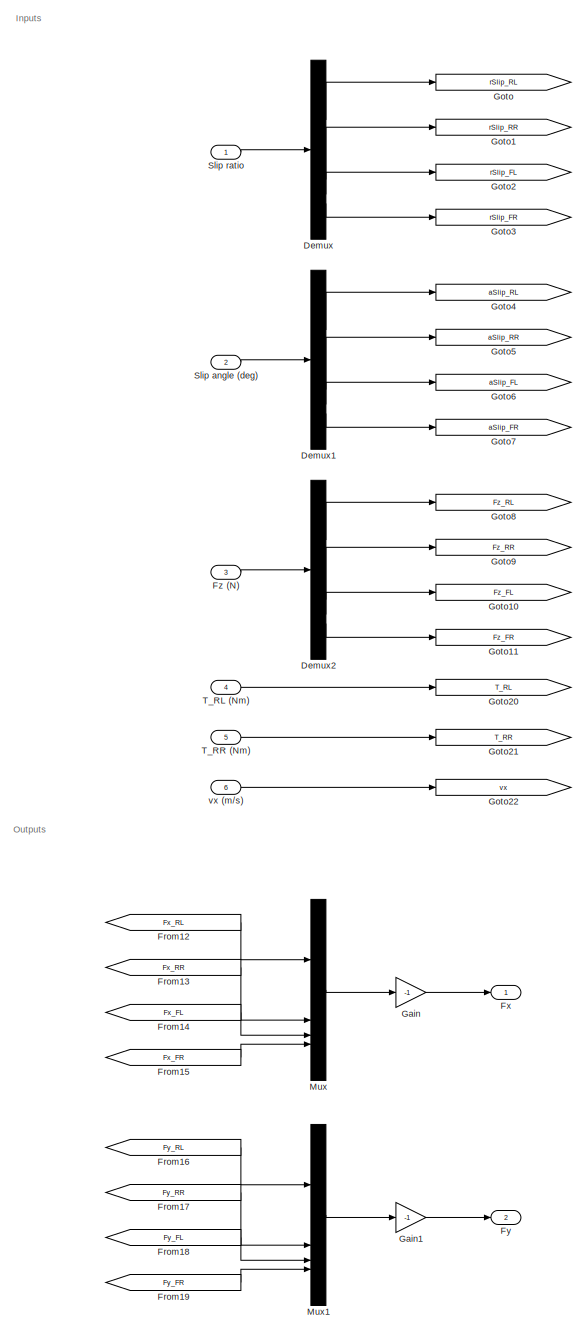
[diagram: root canvas - part 1/3, left side, full height]
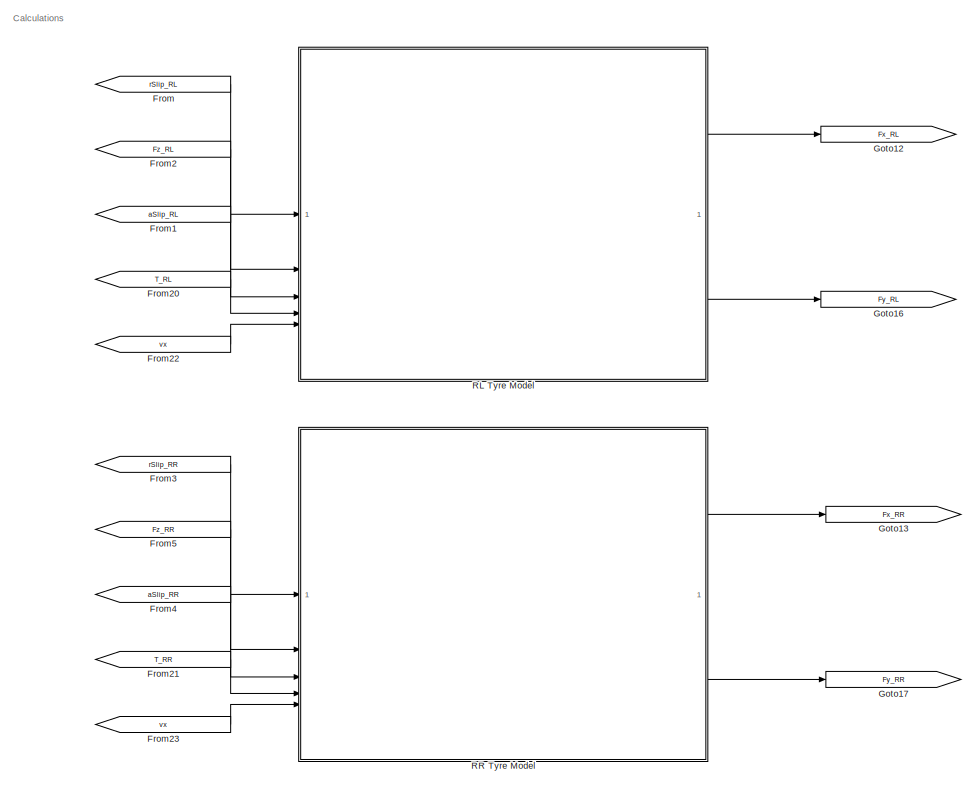
[diagram: root canvas - part 2/3, top right region]
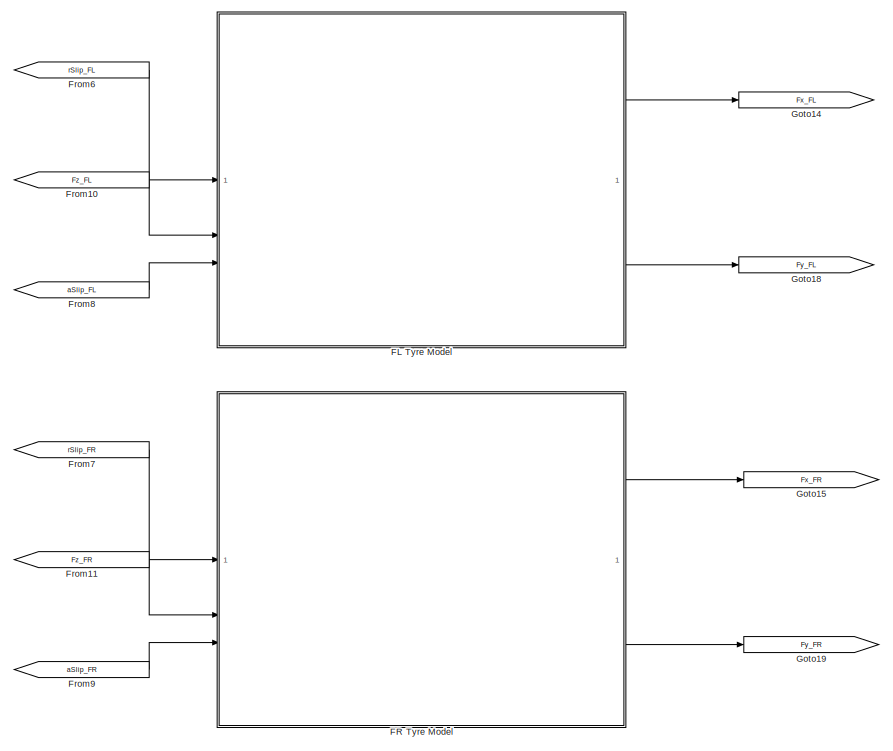
[diagram: root canvas - part 3/3, bottom right region]
MODEL slx_f90bede13856
KIND model
CONFIG AbsTol = auto
CONFIG EnableMultiTasking = off
CONFIG FixedStep = Ts
CONFIG MaxStep = auto
CONFIG MinStep = auto
CONFIG RelTol = 1e-3
CONFIG SampleTimeConstraint = Unconstrained
CONFIG SolverName = FixedStepDiscrete
CONFIG StartTime = 0.0
CONFIG StopTime = 10.0
BLOCK [Demux] Demux
BLOCK [Demux] Demux1
BLOCK [Demux] Demux2
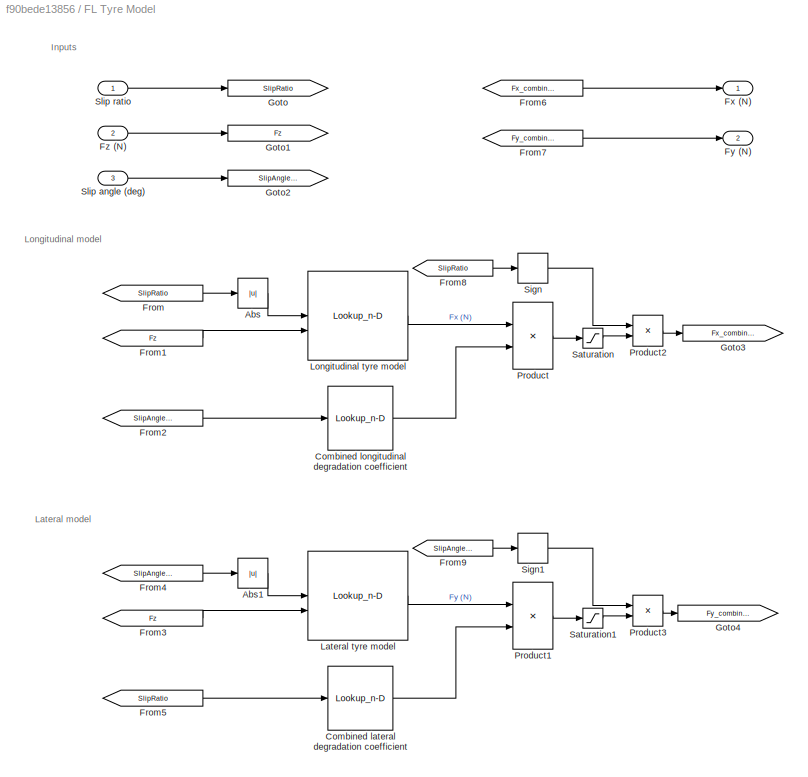
BLOCK [SubSystem] FL Tyre Model
BLOCK [Abs] FL Tyre Model/Abs
  SaturateOnIntegerOverflow = off
BLOCK [Abs] FL Tyre Model/Abs1
  SaturateOnIntegerOverflow = off
BLOCK [Lookup_n-D] FL Tyre Model/Combined lateral degradation coefficient
  BreakpointsForDimension1 = [0 0.05 0.1 0.2]
  InputPortMap = u0
  InternalRulePriority = Speed
  NumberOfTableDimensions = 1
  RndMeth = Simplest
  Table = [1 0.95 0.8 0.4]
BLOCK [Lookup_n-D] FL Tyre Model/Combined longitudinal degradation coefficient
  BreakpointsForDimension1 = [0 3 6 10]
  InputPortMap = u0
  InternalRulePriority = Speed
  NumberOfTableDimensions = 1
  RndMeth = Simplest
  Table = [1 0.95 0.8 0.4]
BLOCK [From] FL Tyre Model/From
  GotoTag = SlipRatio
BLOCK [From] FL Tyre Model/From1
  GotoTag = Fz
BLOCK [From] FL Tyre Model/From2
  GotoTag = SlipAngle_deg
BLOCK [From] FL Tyre Model/From3
  GotoTag = Fz
BLOCK [From] FL Tyre Model/From4
  GotoTag = SlipAngle_deg
BLOCK [From] FL Tyre Model/From5
  GotoTag = SlipRatio
BLOCK [From] FL Tyre Model/From6
  GotoTag = Fx_combined
BLOCK [From] FL Tyre Model/From7
  GotoTag = Fy_combined
BLOCK [From] FL Tyre Model/From8
  GotoTag = SlipRatio
BLOCK [From] FL Tyre Model/From9
  GotoTag = SlipAngle_deg
BLOCK [Outport] FL Tyre Model/Fx (N)
BLOCK [Outport] FL Tyre Model/Fy (N)
  Port = 2
BLOCK [Inport] FL Tyre Model/Fz (N)
  Port = 2
BLOCK [Goto] FL Tyre Model/Goto
  GotoTag = SlipRatio
BLOCK [Goto] FL Tyre Model/Goto1
  GotoTag = Fz
BLOCK [Goto] FL Tyre Model/Goto2
  GotoTag = SlipAngle_deg
BLOCK [Goto] FL Tyre Model/Goto3
  GotoTag = Fx_combined
BLOCK [Goto] FL Tyre Model/Goto4
  GotoTag = Fy_combined
BLOCK [Lookup_n-D] FL Tyre Model/Lateral tyre model
  BreakpointsForDimension1 = [0;2.5;5;7.5;10;12.5;15]
  BreakpointsForDimension2 = [200;400;650;1100;1450;1600]
  InputPortMap = u0,u1
  InternalRulePriority = Speed
  RndMeth = Simplest
  Table = [0 0 0 0 0 0;160 180 715 715 1240 1300;260 280 1030 1040 1840 1900;340 345 1250 1275 2440 2500;380 380 1350 1360 2600 2630;370 375 1400 1410 2575 2600;370 390 1380 1390 2525 2550]
BLOCK [Lookup_n-D] FL Tyre Model/Longitudinal tyre model
  BreakpointsForDimension1 = [0;0.025000000000000001;0.050000000000000003;0.074999999999999997;0.10000000000000001;0.125;0.14999999999999999;0.17499999999999999;0.20000000000000001]
  BreakpointsForDimension2 = [150;250;600;700;1050;1150;1500]
  InputPortMap = u0,u1
  InternalRulePriority = Speed
  RndMeth = Simplest
  Table = [0 0 0 0 0 0 0;160 180 715 715 1240 1300 1520;260 280 1030 1040 1840 1900 2400;340 345 1250 1275 2440 2500 3050;380 380 1350 1360 2600 2630 3300;370 375 1400 1410 2575 2600 3400;370 390 1380 1390 2525 2550 3350;360 370 1370 1385 2400 2430 3300;350 360 1350 1370 2300 2330 3100]  <repeated x4 — deduplicated; at blocks: Longitudinal tyre model>
BLOCK [Product] FL Tyre Model/Product
BLOCK [Product] FL Tyre Model/Product1
BLOCK [Product] FL Tyre Model/Product2
BLOCK [Product] FL Tyre Model/Product3
BLOCK [Saturate] FL Tyre Model/Saturation
  LowerLimit = 0
  UpperLimit = 4000
BLOCK [Saturate] FL Tyre Model/Saturation1
  LowerLimit = 0
  UpperLimit = 4000
BLOCK [Signum] FL Tyre Model/Sign
BLOCK [Signum] FL Tyre Model/Sign1
BLOCK [Inport] FL Tyre Model/Slip angle (deg)
  Port = 3
BLOCK [Inport] FL Tyre Model/Slip ratio
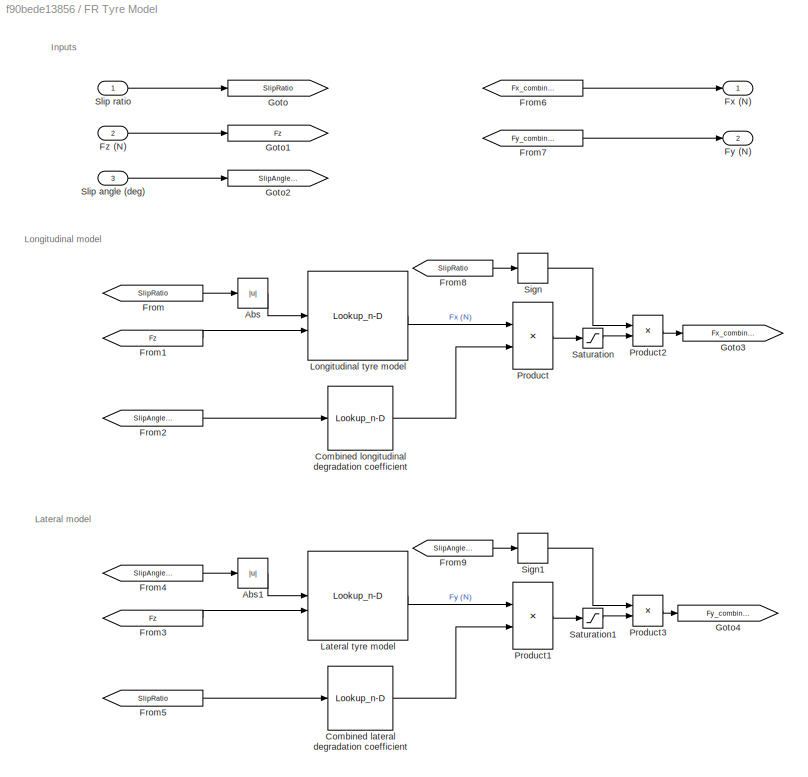
BLOCK [SubSystem] FR Tyre Model
BLOCK [Abs] FR Tyre Model/Abs
  SaturateOnIntegerOverflow = off
BLOCK [Abs] FR Tyre Model/Abs1
  SaturateOnIntegerOverflow = off
BLOCK [Lookup_n-D] FR Tyre Model/Combined lateral degradation coefficient
  BreakpointsForDimension1 = [0 0.05 0.1 0.2]
  InputPortMap = u0
  InternalRulePriority = Speed
  NumberOfTableDimensions = 1
  RndMeth = Simplest
  Table = [1 0.95 0.8 0.4]
BLOCK [Lookup_n-D] FR Tyre Model/Combined longitudinal degradation coefficient
  BreakpointsForDimension1 = [0 3 6 10]
  InputPortMap = u0
  InternalRulePriority = Speed
  NumberOfTableDimensions = 1
  RndMeth = Simplest
  Table = [1 0.95 0.8 0.4]
BLOCK [From] FR Tyre Model/From
  GotoTag = SlipRatio
BLOCK [From] FR Tyre Model/From1
  GotoTag = Fz
BLOCK [From] FR Tyre Model/From2
  GotoTag = SlipAngle_deg
BLOCK [From] FR Tyre Model/From3
  GotoTag = Fz
BLOCK [From] FR Tyre Model/From4
  GotoTag = SlipAngle_deg
BLOCK [From] FR Tyre Model/From5
  GotoTag = SlipRatio
BLOCK [From] FR Tyre Model/From6
  GotoTag = Fx_combined
BLOCK [From] FR Tyre Model/From7
  GotoTag = Fy_combined
BLOCK [From] FR Tyre Model/From8
  GotoTag = SlipRatio
BLOCK [From] FR Tyre Model/From9
  GotoTag = SlipAngle_deg
BLOCK [Outport] FR Tyre Model/Fx (N)
BLOCK [Outport] FR Tyre Model/Fy (N)
  Port = 2
BLOCK [Inport] FR Tyre Model/Fz (N)
  Port = 2
BLOCK [Goto] FR Tyre Model/Goto
  GotoTag = SlipRatio
BLOCK [Goto] FR Tyre Model/Goto1
  GotoTag = Fz
BLOCK [Goto] FR Tyre Model/Goto2
  GotoTag = SlipAngle_deg
BLOCK [Goto] FR Tyre Model/Goto3
  GotoTag = Fx_combined
BLOCK [Goto] FR Tyre Model/Goto4
  GotoTag = Fy_combined
BLOCK [Lookup_n-D] FR Tyre Model/Lateral tyre model
  BreakpointsForDimension1 = [0;2.5;5;7.5;10;12.5;15]
  BreakpointsForDimension2 = [200;400;650;1100;1450;1600]
  InputPortMap = u0,u1
  InternalRulePriority = Speed
  RndMeth = Simplest
  Table = [0 0 0 0 0 0;160 180 715 715 1240 1300;260 280 1030 1040 1840 1900;340 345 1250 1275 2440 2500;380 380 1350 1360 2600 2630;370 375 1400 1410 2575 2600;370 390 1380 1390 2525 2550]
BLOCK [Lookup_n-D] FR Tyre Model/Longitudinal tyre model
  BreakpointsForDimension1 = [0;0.025000000000000001;0.050000000000000003;0.074999999999999997;0.10000000000000001;0.125;0.14999999999999999;0.17499999999999999;0.20000000000000001]
  BreakpointsForDimension2 = [150;250;600;700;1050;1150;1500]
  InputPortMap = u0,u1
  InternalRulePriority = Speed
  RndMeth = Simplest
BLOCK [Product] FR Tyre Model/Product
BLOCK [Product] FR Tyre Model/Product1
BLOCK [Product] FR Tyre Model/Product2
BLOCK [Product] FR Tyre Model/Product3
BLOCK [Saturate] FR Tyre Model/Saturation
  LowerLimit = 0
  UpperLimit = 4000
BLOCK [Saturate] FR Tyre Model/Saturation1
  LowerLimit = 0
  UpperLimit = 4000
BLOCK [Signum] FR Tyre Model/Sign
BLOCK [Signum] FR Tyre Model/Sign1
BLOCK [Inport] FR Tyre Model/Slip angle (deg)
  Port = 3
BLOCK [Inport] FR Tyre Model/Slip ratio
BLOCK [From] From
  GotoTag = rSlip_RL
BLOCK [From] From1
  GotoTag = aSlip_RL
BLOCK [From] From10
  GotoTag = Fz_FL
BLOCK [From] From11
  GotoTag = Fz_FR
BLOCK [From] From12
  GotoTag = Fx_RL
BLOCK [From] From13
  GotoTag = Fx_RR
BLOCK [From] From14
  GotoTag = Fx_FL
BLOCK [From] From15
  GotoTag = Fx_FR
BLOCK [From] From16
  GotoTag = Fy_RL
BLOCK [From] From17
  GotoTag = Fy_RR
BLOCK [From] From18
  GotoTag = Fy_FL
BLOCK [From] From19
  GotoTag = Fy_FR
BLOCK [From] From2
  GotoTag = Fz_RL
BLOCK [From] From20
  GotoTag = T_RL
BLOCK [From] From21
  GotoTag = T_RR
BLOCK [From] From22
  GotoTag = vx
BLOCK [From] From23
  GotoTag = vx
BLOCK [From] From3
  GotoTag = rSlip_RR
BLOCK [From] From4
  GotoTag = aSlip_RR
BLOCK [From] From5
  GotoTag = Fz_RR
BLOCK [From] From6
  GotoTag = rSlip_FL
BLOCK [From] From7
  GotoTag = rSlip_FR
BLOCK [From] From8
  GotoTag = aSlip_FL
BLOCK [From] From9
  GotoTag = aSlip_FR
BLOCK [Outport] Fx
BLOCK [Outport] Fy
  Port = 2
BLOCK [Inport] Fz (N)
  Port = 3
BLOCK [Gain] Gain
  Gain = -1
BLOCK [Gain] Gain1
  Gain = -1
BLOCK [Goto] Goto
  GotoTag = rSlip_RL
BLOCK [Goto] Goto1
  GotoTag = rSlip_RR
BLOCK [Goto] Goto10
  GotoTag = Fz_FL
BLOCK [Goto] Goto11
  GotoTag = Fz_FR
BLOCK [Goto] Goto12
  GotoTag = Fx_RL
BLOCK [Goto] Goto13
  GotoTag = Fx_RR
BLOCK [Goto] Goto14
  GotoTag = Fx_FL
BLOCK [Goto] Goto15
  GotoTag = Fx_FR
BLOCK [Goto] Goto16
  GotoTag = Fy_RL
BLOCK [Goto] Goto17
  GotoTag = Fy_RR
BLOCK [Goto] Goto18
  GotoTag = Fy_FL
BLOCK [Goto] Goto19
  GotoTag = Fy_FR
BLOCK [Goto] Goto2
  GotoTag = rSlip_FL
BLOCK [Goto] Goto20
  GotoTag = T_RL
BLOCK [Goto] Goto21
  GotoTag = T_RR
BLOCK [Goto] Goto22
  GotoTag = vx
BLOCK [Goto] Goto3
  GotoTag = rSlip_FR
BLOCK [Goto] Goto4
  GotoTag = aSlip_RL
BLOCK [Goto] Goto5
  GotoTag = aSlip_RR
BLOCK [Goto] Goto6
  GotoTag = aSlip_FL
BLOCK [Goto] Goto7
  GotoTag = aSlip_FR
BLOCK [Goto] Goto8
  GotoTag = Fz_RL
BLOCK [Goto] Goto9
  GotoTag = Fz_RR
BLOCK [Mux] Mux
  DisplayOption = bar
BLOCK [Mux] Mux1
  DisplayOption = bar
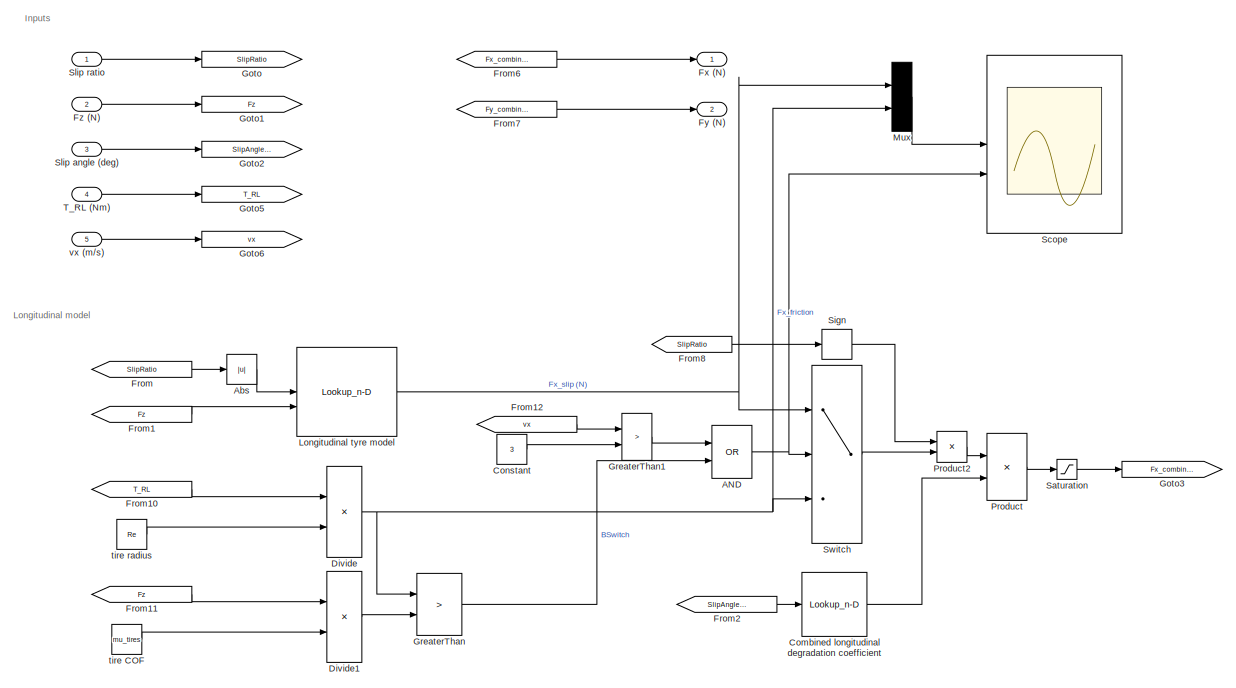
[diagram: RL Tyre Model - part 1/2, full width, middle band]
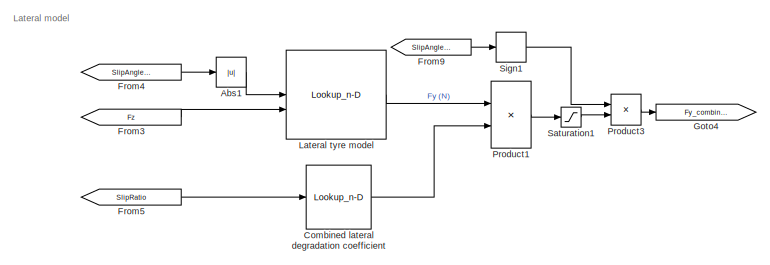
[diagram: RL Tyre Model - part 2/2, bottom left region]
BLOCK [SubSystem] RL Tyre Model
BLOCK [Logic] RL Tyre Model/AND
  AllPortsSameDT = off
  Operator = OR
  OutDataTypeStr = boolean
BLOCK [Abs] RL Tyre Model/Abs
  SaturateOnIntegerOverflow = off
BLOCK [Abs] RL Tyre Model/Abs1
  SaturateOnIntegerOverflow = off
BLOCK [Lookup_n-D] RL Tyre Model/Combined lateral degradation coefficient
  BreakpointsForDimension1 = [0 0.05 0.1 0.2]
  InputPortMap = u0
  InternalRulePriority = Speed
  NumberOfTableDimensions = 1
  RndMeth = Simplest
  Table = [1 0.95 0.8 0.4]
BLOCK [Lookup_n-D] RL Tyre Model/Combined longitudinal degradation coefficient
  BreakpointsForDimension1 = [0 3 6 10]
  InputPortMap = u0
  InternalRulePriority = Speed
  NumberOfTableDimensions = 1
  RndMeth = Simplest
  Table = [1 0.95 0.8 0.4]
BLOCK [Constant] RL Tyre Model/Constant
  Value = 3
BLOCK [Product] RL Tyre Model/Divide
  Inputs = */
BLOCK [Product] RL Tyre Model/Divide1
  Inputs = **
BLOCK [From] RL Tyre Model/From
  GotoTag = SlipRatio
BLOCK [From] RL Tyre Model/From1
  GotoTag = Fz
BLOCK [From] RL Tyre Model/From10
  GotoTag = T_RL
BLOCK [From] RL Tyre Model/From11
  GotoTag = Fz
BLOCK [From] RL Tyre Model/From12
  GotoTag = vx
BLOCK [From] RL Tyre Model/From2
  GotoTag = SlipAngle_deg
BLOCK [From] RL Tyre Model/From3
  GotoTag = Fz
BLOCK [From] RL Tyre Model/From4
  GotoTag = SlipAngle_deg
BLOCK [From] RL Tyre Model/From5
  GotoTag = SlipRatio
BLOCK [From] RL Tyre Model/From6
  GotoTag = Fx_combined
BLOCK [From] RL Tyre Model/From7
  GotoTag = Fy_combined
BLOCK [From] RL Tyre Model/From8
  GotoTag = SlipRatio
BLOCK [From] RL Tyre Model/From9
  GotoTag = SlipAngle_deg
BLOCK [Outport] RL Tyre Model/Fx (N)
BLOCK [Outport] RL Tyre Model/Fy (N)
  Port = 2
BLOCK [Inport] RL Tyre Model/Fz (N)
  Port = 2
BLOCK [Goto] RL Tyre Model/Goto
  GotoTag = SlipRatio
BLOCK [Goto] RL Tyre Model/Goto1
  GotoTag = Fz
BLOCK [Goto] RL Tyre Model/Goto2
  GotoTag = SlipAngle_deg
BLOCK [Goto] RL Tyre Model/Goto3
  GotoTag = Fx_combined
BLOCK [Goto] RL Tyre Model/Goto4
  GotoTag = Fy_combined
BLOCK [Goto] RL Tyre Model/Goto5
  GotoTag = T_RL
BLOCK [Goto] RL Tyre Model/Goto6
  GotoTag = vx
BLOCK [RelationalOperator] RL Tyre Model/GreaterThan
  InputSameDT = off
  Operator = >
  OutDataTypeStr = boolean
  RndMeth = Simplest
BLOCK [RelationalOperator] RL Tyre Model/GreaterThan1
  InputSameDT = off
  Operator = >
  OutDataTypeStr = boolean
  RndMeth = Simplest
BLOCK [Lookup_n-D] RL Tyre Model/Lateral tyre model
  BreakpointsForDimension1 = [0;2.5;5;7.5;10;12.5;15]
  BreakpointsForDimension2 = [200;400;650;1100;1450;1600]
  InputPortMap = u0,u1
  InternalRulePriority = Speed
  RndMeth = Simplest
  Table = [0 0 0 0 0 0;160 180 715 715 1240 1300;260 280 1030 1040 1840 1900;340 345 1250 1275 2440 2500;380 380 1350 1360 2600 2630;370 375 1400 1410 2575 2600;370 390 1380 1390 2525 2550]
BLOCK [Lookup_n-D] RL Tyre Model/Longitudinal tyre model
  BreakpointsForDimension1 = [0;0.025000000000000001;0.050000000000000003;0.074999999999999997;0.10000000000000001;0.125;0.14999999999999999;0.17499999999999999;0.20000000000000001]
  BreakpointsForDimension2 = [150;250;600;700;1050;1150;1500]
  ExtrapMethod = Clip
  InputPortMap = u0,u1
  InternalRulePriority = Speed
  RndMeth = Simplest
BLOCK [Mux] RL Tyre Model/Mux
  DisplayOption = bar
  Inputs = 2
BLOCK [Product] RL Tyre Model/Product
BLOCK [Product] RL Tyre Model/Product1
BLOCK [Product] RL Tyre Model/Product2
BLOCK [Product] RL Tyre Model/Product3
BLOCK [Saturate] RL Tyre Model/Saturation
  LowerLimit = -4000
  UpperLimit = 4000
BLOCK [Saturate] RL Tyre Model/Saturation1
  LowerLimit = -4000
  UpperLimit = 4000
BLOCK [Scope] RL Tyre Model/Scope
  Floating = off
  NumInputPorts = 2
  ScopeSpecificationString = Simulink.scopes.TimeScopeBlockCfg('CurrentConfiguration', extmgr.ConfigurationSet(extmgr.Configuration('Core','General UI',true),extmgr.Configuration('Core','Source UI',true),extmgr.Configuration('Sources','WiredSimulink',true),extmgr.Configuration('Visuals','Time Domain',true,'SerializedDisplays',{struct('MinYLimReal','-1944.48229','MaxYLimReal','2079.80008','YLabelReal','','MinYLimMag','  0.0000...<+2204ch>
BLOCK [Signum] RL Tyre Model/Sign
BLOCK [Signum] RL Tyre Model/Sign1
BLOCK [Inport] RL Tyre Model/Slip angle (deg)
  Port = 3
BLOCK [Inport] RL Tyre Model/Slip ratio
BLOCK [Switch] RL Tyre Model/Switch
  Criteria = u2 > Threshold
  InputSameDT = off
  SaturateOnIntegerOverflow = off
BLOCK [Inport] RL Tyre Model/T_RL (Nm)
  Port = 4
BLOCK [Constant] RL Tyre Model/tire COF
  Value = mu_tires
BLOCK [Constant] RL Tyre Model/tire radius
  Value = Re
BLOCK [Inport] RL Tyre Model/vx (m//s)
  Port = 5
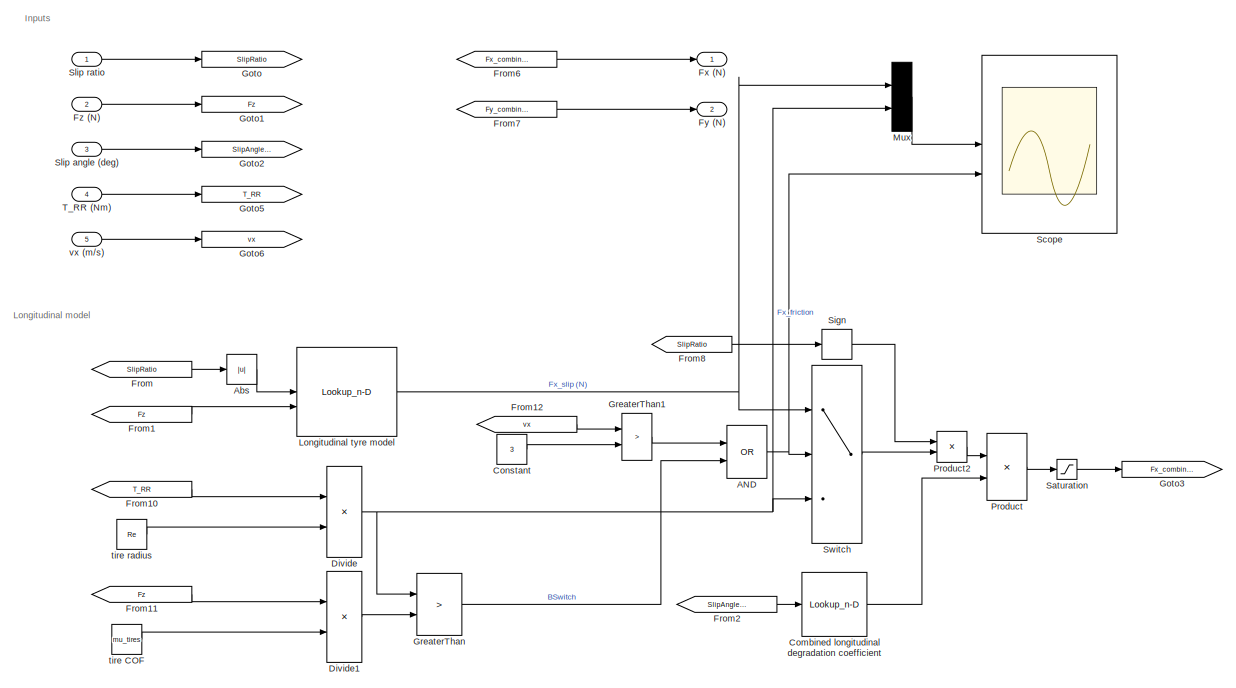
[diagram: RR Tyre Model - part 1/2, full width, middle band]
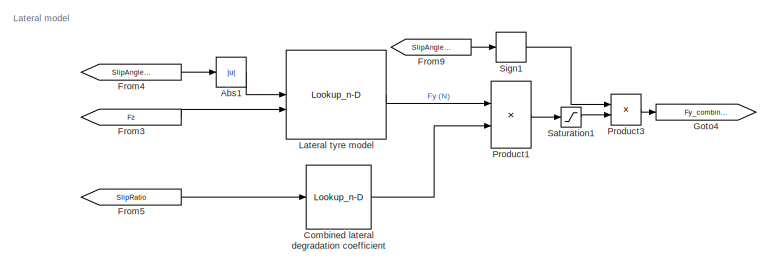
[diagram: RR Tyre Model - part 2/2, bottom left region]
BLOCK [SubSystem] RR Tyre Model
BLOCK [Logic] RR Tyre Model/AND
  AllPortsSameDT = off
  Operator = OR
  OutDataTypeStr = boolean
BLOCK [Abs] RR Tyre Model/Abs
  SaturateOnIntegerOverflow = off
BLOCK [Abs] RR Tyre Model/Abs1
  SaturateOnIntegerOverflow = off
BLOCK [Lookup_n-D] RR Tyre Model/Combined lateral degradation coefficient
  BreakpointsForDimension1 = [0 0.05 0.1 0.2]
  InputPortMap = u0
  InternalRulePriority = Speed
  NumberOfTableDimensions = 1
  RndMeth = Simplest
  Table = [1 0.95 0.8 0.4]
BLOCK [Lookup_n-D] RR Tyre Model/Combined longitudinal degradation coefficient
  BreakpointsForDimension1 = [0 3 6 10]
  InputPortMap = u0
  InternalRulePriority = Speed
  NumberOfTableDimensions = 1
  RndMeth = Simplest
  Table = [1 0.95 0.8 0.4]
BLOCK [Constant] RR Tyre Model/Constant
  Value = 3
BLOCK [Product] RR Tyre Model/Divide
  Inputs = */
BLOCK [Product] RR Tyre Model/Divide1
  Inputs = **
BLOCK [From] RR Tyre Model/From
  GotoTag = SlipRatio
BLOCK [From] RR Tyre Model/From1
  GotoTag = Fz
BLOCK [From] RR Tyre Model/From10
  GotoTag = T_RR
BLOCK [From] RR Tyre Model/From11
  GotoTag = Fz
BLOCK [From] RR Tyre Model/From12
  GotoTag = vx
BLOCK [From] RR Tyre Model/From2
  GotoTag = SlipAngle_deg
BLOCK [From] RR Tyre Model/From3
  GotoTag = Fz
BLOCK [From] RR Tyre Model/From4
  GotoTag = SlipAngle_deg
BLOCK [From] RR Tyre Model/From5
  GotoTag = SlipRatio
BLOCK [From] RR Tyre Model/From6
  GotoTag = Fx_combined
BLOCK [From] RR Tyre Model/From7
  GotoTag = Fy_combined
BLOCK [From] RR Tyre Model/From8
  GotoTag = SlipRatio
BLOCK [From] RR Tyre Model/From9
  GotoTag = SlipAngle_deg
BLOCK [Outport] RR Tyre Model/Fx (N)
BLOCK [Outport] RR Tyre Model/Fy (N)
  Port = 2
BLOCK [Inport] RR Tyre Model/Fz (N)
  Port = 2
BLOCK [Goto] RR Tyre Model/Goto
  GotoTag = SlipRatio
BLOCK [Goto] RR Tyre Model/Goto1
  GotoTag = Fz
BLOCK [Goto] RR Tyre Model/Goto2
  GotoTag = SlipAngle_deg
BLOCK [Goto] RR Tyre Model/Goto3
  GotoTag = Fx_combined
BLOCK [Goto] RR Tyre Model/Goto4
  GotoTag = Fy_combined
BLOCK [Goto] RR Tyre Model/Goto5
  GotoTag = T_RR
BLOCK [Goto] RR Tyre Model/Goto6
  GotoTag = vx
BLOCK [RelationalOperator] RR Tyre Model/GreaterThan
  InputSameDT = off
  Operator = >
  OutDataTypeStr = boolean
  RndMeth = Simplest
BLOCK [RelationalOperator] RR Tyre Model/GreaterThan1
  InputSameDT = off
  Operator = >
  OutDataTypeStr = boolean
  RndMeth = Simplest
BLOCK [Lookup_n-D] RR Tyre Model/Lateral tyre model
  BreakpointsForDimension1 = [0;2.5;5;7.5;10;12.5;15]
  BreakpointsForDimension2 = [200;400;650;1100;1450;1600]
  InputPortMap = u0,u1
  InternalRulePriority = Speed
  RndMeth = Simplest
  Table = [0 0 0 0 0 0;160 180 715 715 1240 1300;260 280 1030 1040 1840 1900;340 345 1250 1275 2440 2500;380 380 1350 1360 2600 2630;370 375 1400 1410 2575 2600;370 390 1380 1390 2525 2550]
BLOCK [Lookup_n-D] RR Tyre Model/Longitudinal tyre model
  BreakpointsForDimension1 = [0;0.025000000000000001;0.050000000000000003;0.074999999999999997;0.10000000000000001;0.125;0.14999999999999999;0.17499999999999999;0.20000000000000001]
  BreakpointsForDimension2 = [150;250;600;700;1050;1150;1500]
  ExtrapMethod = Clip
  InputPortMap = u0,u1
  InternalRulePriority = Speed
  RndMeth = Simplest
BLOCK [Mux] RR Tyre Model/Mux
  DisplayOption = bar
  Inputs = 2
BLOCK [Product] RR Tyre Model/Product
BLOCK [Product] RR Tyre Model/Product1
BLOCK [Product] RR Tyre Model/Product2
BLOCK [Product] RR Tyre Model/Product3
BLOCK [Saturate] RR Tyre Model/Saturation
  LowerLimit = -4000
  UpperLimit = 4000
BLOCK [Saturate] RR Tyre Model/Saturation1
  LowerLimit = -4000
  UpperLimit = 4000
BLOCK [Scope] RR Tyre Model/Scope
  Floating = off
  NumInputPorts = 2
  ScopeSpecificationString = Simulink.scopes.TimeScopeBlockCfg('CurrentConfiguration', extmgr.ConfigurationSet(extmgr.Configuration('Core','General UI',true),extmgr.Configuration('Core','Source UI',true),extmgr.Configuration('Sources','WiredSimulink',true),extmgr.Configuration('Visuals','Time Domain',true,'SerializedDisplays',{struct('MinYLimReal','-2013.41002','MaxYLimReal','2700.14964','YLabelReal','','MinYLimMag','  0.0000...<+1462ch>
BLOCK [Signum] RR Tyre Model/Sign
BLOCK [Signum] RR Tyre Model/Sign1
BLOCK [Inport] RR Tyre Model/Slip angle (deg)
  Port = 3
BLOCK [Inport] RR Tyre Model/Slip ratio
BLOCK [Switch] RR Tyre Model/Switch
  Criteria = u2 > Threshold
  InputSameDT = off
  SaturateOnIntegerOverflow = off
BLOCK [Inport] RR Tyre Model/T_RR (Nm)
  Port = 4
BLOCK [Constant] RR Tyre Model/tire COF
  Value = mu_tires
BLOCK [Constant] RR Tyre Model/tire radius
  Value = Re
BLOCK [Inport] RR Tyre Model/vx (m//s)
  Port = 5
BLOCK [Inport] Slip angle (deg)
  Port = 2
BLOCK [Inport] Slip ratio
BLOCK [Inport] T_RL (Nm)
  Port = 4
BLOCK [Inport] T_RR (Nm)
  Port = 5
BLOCK [Inport] vx (m//s)
  Port = 6
ANNOTATION (root): Calculations
ANNOTATION (root): Inputs
ANNOTATION (root): Outputs
ANNOTATION FL Tyre Model: Inputs
ANNOTATION FL Tyre Model: Lateral model
ANNOTATION FL Tyre Model: Longitudinal model
ANNOTATION FR Tyre Model: Inputs
ANNOTATION FR Tyre Model: Lateral model
ANNOTATION FR Tyre Model: Longitudinal model
ANNOTATION RL Tyre Model: Inputs
ANNOTATION RL Tyre Model: Lateral model
ANNOTATION RL Tyre Model: Longitudinal model
ANNOTATION RR Tyre Model: Inputs
ANNOTATION RR Tyre Model: Lateral model
ANNOTATION RR Tyre Model: Longitudinal model
LINE Demux1:1 -> Goto4:1
LINE Demux1:2 -> Goto5:1
LINE Demux1:3 -> Goto6:1
LINE Demux1:4 -> Goto7:1
LINE Demux2:1 -> Goto8:1
LINE Demux2:2 -> Goto9:1
LINE Demux2:3 -> Goto10:1
LINE Demux2:4 -> Goto11:1
LINE Demux:1 -> Goto:1
LINE Demux:2 -> Goto1:1
LINE Demux:3 -> Goto2:1
LINE Demux:4 -> Goto3:1
LINE FL Tyre Model/Abs1:1 -> FL Tyre Model/Lateral tyre model:1
LINE FL Tyre Model/Abs:1 -> FL Tyre Model/Longitudinal tyre model:1
LINE FL Tyre Model/Combined lateral degradation coefficient:1 -> FL Tyre Model/Product1:2
LINE FL Tyre Model/Combined longitudinal degradation coefficient:1 -> FL Tyre Model/Product:2
LINE FL Tyre Model/From1:1 -> FL Tyre Model/Longitudinal tyre model:2
LINE FL Tyre Model/From2:1 -> FL Tyre Model/Combined longitudinal degradation coefficient:1
LINE FL Tyre Model/From3:1 -> FL Tyre Model/Lateral tyre model:2
LINE FL Tyre Model/From4:1 -> FL Tyre Model/Abs1:1
LINE FL Tyre Model/From5:1 -> FL Tyre Model/Combined lateral degradation coefficient:1
LINE FL Tyre Model/From6:1 -> FL Tyre Model/Fx (N):1
LINE FL Tyre Model/From7:1 -> FL Tyre Model/Fy (N):1
LINE FL Tyre Model/From8:1 -> FL Tyre Model/Sign:1
LINE FL Tyre Model/From9:1 -> FL Tyre Model/Sign1:1
LINE FL Tyre Model/From:1 -> FL Tyre Model/Abs:1
LINE FL Tyre Model/Fz (N):1 -> FL Tyre Model/Goto1:1
LINE FL Tyre Model/Lateral tyre model:1 -> FL Tyre Model/Product1:1
LINE FL Tyre Model/Longitudinal tyre model:1 -> FL Tyre Model/Product:1
LINE FL Tyre Model/Product1:1 -> FL Tyre Model/Saturation1:1
LINE FL Tyre Model/Product2:1 -> FL Tyre Model/Goto3:1
LINE FL Tyre Model/Product3:1 -> FL Tyre Model/Goto4:1
LINE FL Tyre Model/Product:1 -> FL Tyre Model/Saturation:1
LINE FL Tyre Model/Saturation1:1 -> FL Tyre Model/Product3:2
LINE FL Tyre Model/Saturation:1 -> FL Tyre Model/Product2:2
LINE FL Tyre Model/Sign1:1 -> FL Tyre Model/Product3:1
LINE FL Tyre Model/Sign:1 -> FL Tyre Model/Product2:1
LINE FL Tyre Model/Slip angle (deg):1 -> FL Tyre Model/Goto2:1
LINE FL Tyre Model/Slip ratio:1 -> FL Tyre Model/Goto:1
LINE FL Tyre Model:1 -> Goto14:1
LINE FL Tyre Model:2 -> Goto18:1
LINE FR Tyre Model/Abs1:1 -> FR Tyre Model/Lateral tyre model:1
LINE FR Tyre Model/Abs:1 -> FR Tyre Model/Longitudinal tyre model:1
LINE FR Tyre Model/Combined lateral degradation coefficient:1 -> FR Tyre Model/Product1:2
LINE FR Tyre Model/Combined longitudinal degradation coefficient:1 -> FR Tyre Model/Product:2
LINE FR Tyre Model/From1:1 -> FR Tyre Model/Longitudinal tyre model:2
LINE FR Tyre Model/From2:1 -> FR Tyre Model/Combined longitudinal degradation coefficient:1
LINE FR Tyre Model/From3:1 -> FR Tyre Model/Lateral tyre model:2
LINE FR Tyre Model/From4:1 -> FR Tyre Model/Abs1:1
LINE FR Tyre Model/From5:1 -> FR Tyre Model/Combined lateral degradation coefficient:1
LINE FR Tyre Model/From6:1 -> FR Tyre Model/Fx (N):1
LINE FR Tyre Model/From7:1 -> FR Tyre Model/Fy (N):1
LINE FR Tyre Model/From8:1 -> FR Tyre Model/Sign:1
LINE FR Tyre Model/From9:1 -> FR Tyre Model/Sign1:1
LINE FR Tyre Model/From:1 -> FR Tyre Model/Abs:1
LINE FR Tyre Model/Fz (N):1 -> FR Tyre Model/Goto1:1
LINE FR Tyre Model/Lateral tyre model:1 -> FR Tyre Model/Product1:1
LINE FR Tyre Model/Longitudinal tyre model:1 -> FR Tyre Model/Product:1
LINE FR Tyre Model/Product1:1 -> FR Tyre Model/Saturation1:1
LINE FR Tyre Model/Product2:1 -> FR Tyre Model/Goto3:1
LINE FR Tyre Model/Product3:1 -> FR Tyre Model/Goto4:1
LINE FR Tyre Model/Product:1 -> FR Tyre Model/Saturation:1
LINE FR Tyre Model/Saturation1:1 -> FR Tyre Model/Product3:2
LINE FR Tyre Model/Saturation:1 -> FR Tyre Model/Product2:2
LINE FR Tyre Model/Sign1:1 -> FR Tyre Model/Product3:1
LINE FR Tyre Model/Sign:1 -> FR Tyre Model/Product2:1
LINE FR Tyre Model/Slip angle (deg):1 -> FR Tyre Model/Goto2:1
LINE FR Tyre Model/Slip ratio:1 -> FR Tyre Model/Goto:1
LINE FR Tyre Model:1 -> Goto15:1
LINE FR Tyre Model:2 -> Goto19:1
LINE From10:1 -> FL Tyre Model:2
LINE From11:1 -> FR Tyre Model:2
LINE From12:1 -> Mux:1
LINE From13:1 -> Mux:2
LINE From14:1 -> Mux:3
LINE From15:1 -> Mux:4
LINE From16:1 -> Mux1:1
LINE From17:1 -> Mux1:2
LINE From18:1 -> Mux1:3
LINE From19:1 -> Mux1:4
LINE From1:1 -> RL Tyre Model:3
LINE From20:1 -> RL Tyre Model:4
LINE From21:1 -> RR Tyre Model:4
LINE From22:1 -> RL Tyre Model:5
LINE From23:1 -> RR Tyre Model:5
LINE From2:1 -> RL Tyre Model:2
LINE From3:1 -> RR Tyre Model:1
LINE From4:1 -> RR Tyre Model:3
LINE From5:1 -> RR Tyre Model:2
LINE From6:1 -> FL Tyre Model:1
LINE From7:1 -> FR Tyre Model:1
LINE From8:1 -> FL Tyre Model:3
LINE From9:1 -> FR Tyre Model:3
LINE From:1 -> RL Tyre Model:1
LINE Fz (N):1 -> Demux2:1
LINE Gain1:1 -> Fy:1
LINE Gain:1 -> Fx:1
LINE Mux1:1 -> Gain1:1
LINE Mux:1 -> Gain:1
NET RL Tyre Model/AND:1 -> RL Tyre Model/Scope:2, RL Tyre Model/Switch:2
LINE RL Tyre Model/Abs1:1 -> RL Tyre Model/Lateral tyre model:1
LINE RL Tyre Model/Abs:1 -> RL Tyre Model/Longitudinal tyre model:1
LINE RL Tyre Model/Combined lateral degradation coefficient:1 -> RL Tyre Model/Product1:2
LINE RL Tyre Model/Combined longitudinal degradation coefficient:1 -> RL Tyre Model/Product:2
LINE RL Tyre Model/Constant:1 -> RL Tyre Model/GreaterThan1:2
LINE RL Tyre Model/Divide1:1 -> RL Tyre Model/GreaterThan:2
NET RL Tyre Model/Divide:1 -> RL Tyre Model/GreaterThan:1, RL Tyre Model/Mux:2, RL Tyre Model/Switch:3
LINE RL Tyre Model/From10:1 -> RL Tyre Model/Divide:1
LINE RL Tyre Model/From11:1 -> RL Tyre Model/Divide1:1
LINE RL Tyre Model/From12:1 -> RL Tyre Model/GreaterThan1:1
LINE RL Tyre Model/From1:1 -> RL Tyre Model/Longitudinal tyre model:2
LINE RL Tyre Model/From2:1 -> RL Tyre Model/Combined longitudinal degradation coefficient:1
LINE RL Tyre Model/From3:1 -> RL Tyre Model/Lateral tyre model:2
LINE RL Tyre Model/From4:1 -> RL Tyre Model/Abs1:1
LINE RL Tyre Model/From5:1 -> RL Tyre Model/Combined lateral degradation coefficient:1
LINE RL Tyre Model/From6:1 -> RL Tyre Model/Fx (N):1
LINE RL Tyre Model/From7:1 -> RL Tyre Model/Fy (N):1
LINE RL Tyre Model/From8:1 -> RL Tyre Model/Sign:1
LINE RL Tyre Model/From9:1 -> RL Tyre Model/Sign1:1
LINE RL Tyre Model/From:1 -> RL Tyre Model/Abs:1
LINE RL Tyre Model/Fz (N):1 -> RL Tyre Model/Goto1:1
LINE RL Tyre Model/GreaterThan1:1 -> RL Tyre Model/AND:1
LINE RL Tyre Model/GreaterThan:1 -> RL Tyre Model/AND:2
LINE RL Tyre Model/Lateral tyre model:1 -> RL Tyre Model/Product1:1
NET RL Tyre Model/Longitudinal tyre model:1 -> RL Tyre Model/Mux:1, RL Tyre Model/Switch:1
LINE RL Tyre Model/Mux:1 -> RL Tyre Model/Scope:1
LINE RL Tyre Model/Product1:1 -> RL Tyre Model/Saturation1:1
LINE RL Tyre Model/Product2:1 -> RL Tyre Model/Product:1
LINE RL Tyre Model/Product3:1 -> RL Tyre Model/Goto4:1
LINE RL Tyre Model/Product:1 -> RL Tyre Model/Saturation:1
LINE RL Tyre Model/Saturation1:1 -> RL Tyre Model/Product3:2
LINE RL Tyre Model/Saturation:1 -> RL Tyre Model/Goto3:1
LINE RL Tyre Model/Sign1:1 -> RL Tyre Model/Product3:1
LINE RL Tyre Model/Sign:1 -> RL Tyre Model/Product2:1
LINE RL Tyre Model/Slip angle (deg):1 -> RL Tyre Model/Goto2:1
LINE RL Tyre Model/Slip ratio:1 -> RL Tyre Model/Goto:1
LINE RL Tyre Model/Switch:1 -> RL Tyre Model/Product2:2
LINE RL Tyre Model/T_RL (Nm):1 -> RL Tyre Model/Goto5:1
LINE RL Tyre Model/tire COF:1 -> RL Tyre Model/Divide1:2
LINE RL Tyre Model/tire radius:1 -> RL Tyre Model/Divide:2
LINE RL Tyre Model/vx (m//s):1 -> RL Tyre Model/Goto6:1
LINE RL Tyre Model:1 -> Goto12:1
LINE RL Tyre Model:2 -> Goto16:1
NET RR Tyre Model/AND:1 -> RR Tyre Model/Scope:2, RR Tyre Model/Switch:2
LINE RR Tyre Model/Abs1:1 -> RR Tyre Model/Lateral tyre model:1
LINE RR Tyre Model/Abs:1 -> RR Tyre Model/Longitudinal tyre model:1
LINE RR Tyre Model/Combined lateral degradation coefficient:1 -> RR Tyre Model/Product1:2
LINE RR Tyre Model/Combined longitudinal degradation coefficient:1 -> RR Tyre Model/Product:2
LINE RR Tyre Model/Constant:1 -> RR Tyre Model/GreaterThan1:2
LINE RR Tyre Model/Divide1:1 -> RR Tyre Model/GreaterThan:2
NET RR Tyre Model/Divide:1 -> RR Tyre Model/GreaterThan:1, RR Tyre Model/Mux:2, RR Tyre Model/Switch:3
LINE RR Tyre Model/From10:1 -> RR Tyre Model/Divide:1
LINE RR Tyre Model/From11:1 -> RR Tyre Model/Divide1:1
LINE RR Tyre Model/From12:1 -> RR Tyre Model/GreaterThan1:1
LINE RR Tyre Model/From1:1 -> RR Tyre Model/Longitudinal tyre model:2
LINE RR Tyre Model/From2:1 -> RR Tyre Model/Combined longitudinal degradation coefficient:1
LINE RR Tyre Model/From3:1 -> RR Tyre Model/Lateral tyre model:2
LINE RR Tyre Model/From4:1 -> RR Tyre Model/Abs1:1
LINE RR Tyre Model/From5:1 -> RR Tyre Model/Combined lateral degradation coefficient:1
LINE RR Tyre Model/From6:1 -> RR Tyre Model/Fx (N):1
LINE RR Tyre Model/From7:1 -> RR Tyre Model/Fy (N):1
LINE RR Tyre Model/From8:1 -> RR Tyre Model/Sign:1
LINE RR Tyre Model/From9:1 -> RR Tyre Model/Sign1:1
LINE RR Tyre Model/From:1 -> RR Tyre Model/Abs:1
LINE RR Tyre Model/Fz (N):1 -> RR Tyre Model/Goto1:1
LINE RR Tyre Model/GreaterThan1:1 -> RR Tyre Model/AND:1
LINE RR Tyre Model/GreaterThan:1 -> RR Tyre Model/AND:2
LINE RR Tyre Model/Lateral tyre model:1 -> RR Tyre Model/Product1:1
NET RR Tyre Model/Longitudinal tyre model:1 -> RR Tyre Model/Mux:1, RR Tyre Model/Switch:1
LINE RR Tyre Model/Mux:1 -> RR Tyre Model/Scope:1
LINE RR Tyre Model/Product1:1 -> RR Tyre Model/Saturation1:1
LINE RR Tyre Model/Product2:1 -> RR Tyre Model/Product:1
LINE RR Tyre Model/Product3:1 -> RR Tyre Model/Goto4:1
LINE RR Tyre Model/Product:1 -> RR Tyre Model/Saturation:1
LINE RR Tyre Model/Saturation1:1 -> RR Tyre Model/Product3:2
LINE RR Tyre Model/Saturation:1 -> RR Tyre Model/Goto3:1
LINE RR Tyre Model/Sign1:1 -> RR Tyre Model/Product3:1
LINE RR Tyre Model/Sign:1 -> RR Tyre Model/Product2:1
LINE RR Tyre Model/Slip angle (deg):1 -> RR Tyre Model/Goto2:1
LINE RR Tyre Model/Slip ratio:1 -> RR Tyre Model/Goto:1
LINE RR Tyre Model/Switch:1 -> RR Tyre Model/Product2:2
LINE RR Tyre Model/T_RR (Nm):1 -> RR Tyre Model/Goto5:1
LINE RR Tyre Model/tire COF:1 -> RR Tyre Model/Divide1:2
LINE RR Tyre Model/tire radius:1 -> RR Tyre Model/Divide:2
LINE RR Tyre Model/vx (m//s):1 -> RR Tyre Model/Goto6:1
LINE RR Tyre Model:1 -> Goto13:1
LINE RR Tyre Model:2 -> Goto17:1
LINE Slip angle (deg):1 -> Demux1:1
LINE Slip ratio:1 -> Demux:1
LINE T_RL (Nm):1 -> Goto20:1
LINE T_RR (Nm):1 -> Goto21:1
LINE vx (m//s):1 -> Goto22:1
note: NET lines group one-source signal fan-out (src -> all destinations, sorted); 1:1 wires keep LINE
